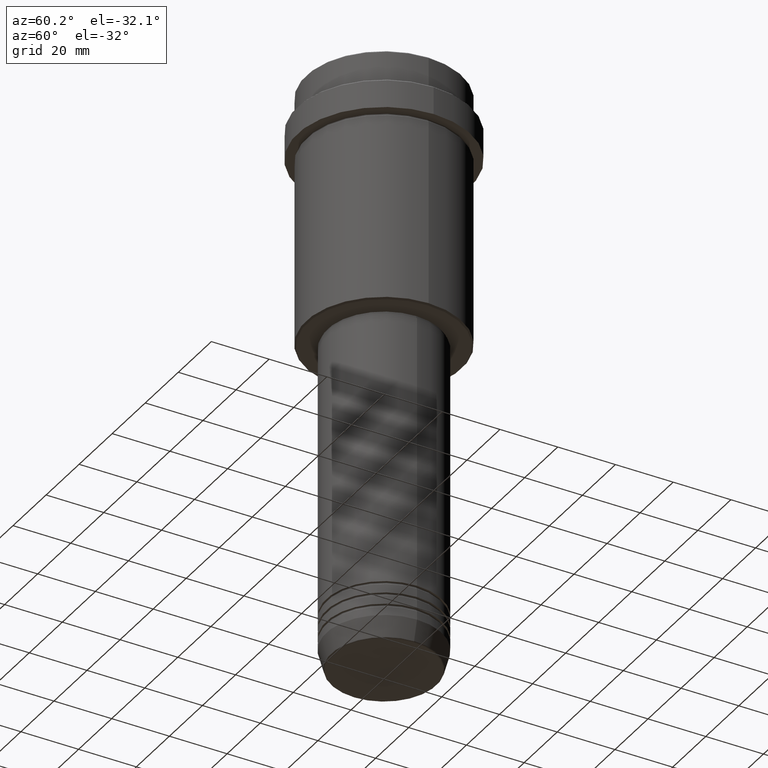
[diagram: clean part render]
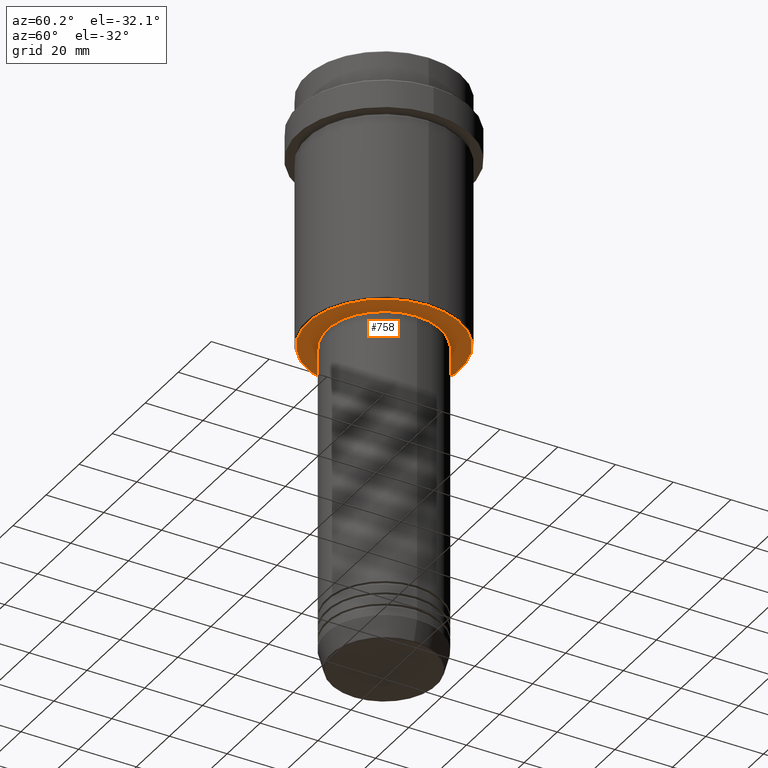
[diagram: same view with one face highlighted and labeled with its STEP entity id]
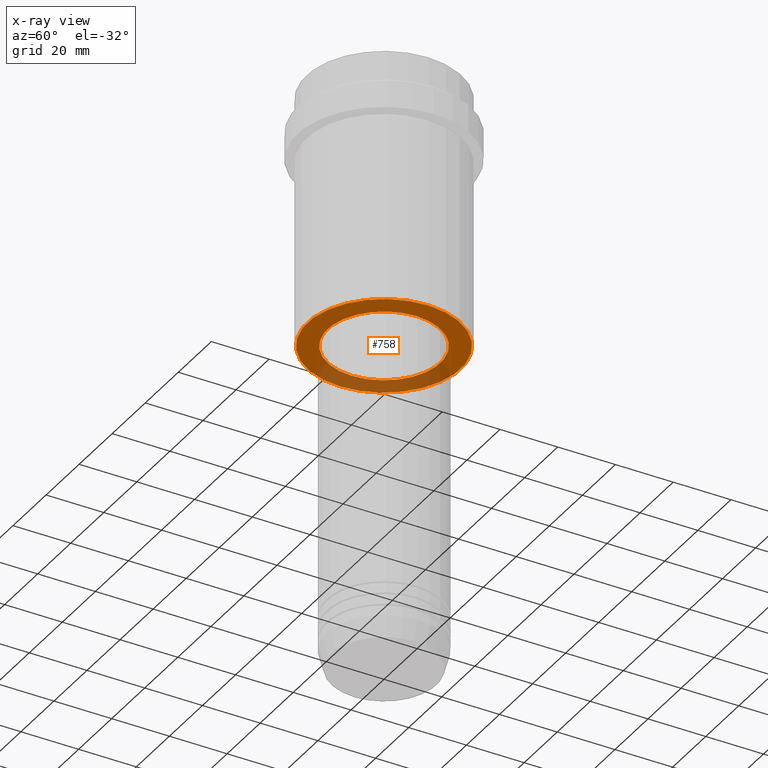
[diagram: x-ray of the same camera — body ghosted, the highlighted face saturated]
A machine part, auxiliary view. The second image highlights one B-rep face of the part: STEP entity #758.
The next image is the same camera in x-ray: the body ghosted, the highlighted face saturated — about 31% of this face is hidden behind the body in this view.
In plain terms, the highlighted planar face has unit normal (0, 0, -1).
Its self-contained STEP definition (entity closure, byte-faithful):
#80 = CARTESIAN_POINT ( 'NONE',  ( 0.000000000000000000, 27.00000000000000000, -88.00000000000001421 ) ) ;
#129 = CIRCLE ( 'NONE', #592, 19.50000000000000000 ) ;
#296 = CARTESIAN_POINT ( 'NONE',  ( -19.50000000000000000, 2.388061258337338939E-15, -88.00000000000001421 ) ) ;
#307 = AXIS2_PLACEMENT_3D ( 'NONE', #569, #1405, #974 ) ;
#333 = AXIS2_PLACEMENT_3D ( 'NONE', #839, #1169, #631 ) ;
#403 = EDGE_LOOP ( 'NONE', ( #444, #918 ) ) ;
#442 = AXIS2_PLACEMENT_3D ( 'NONE', #80, #732, #626 ) ;
#444 = ORIENTED_EDGE ( 'NONE', *, *, #1100, .T. ) ;
#467 = VERTEX_POINT ( 'NONE', #1070 ) ;
#487 = EDGE_CURVE ( 'NONE', #1321, #467, #1281, .T. ) ;
#569 = CARTESIAN_POINT ( 'NONE',  ( 0.000000000000000000, 0.000000000000000000, -88.00000000000001421 ) ) ;
#592 = AXIS2_PLACEMENT_3D ( 'NONE', #1159, #943, #1164 ) ;
#601 = VERTEX_POINT ( 'NONE', #761 ) ;
#626 = DIRECTION ( 'NONE',  ( -1.000000000000000000, 0.000000000000000000, -0.000000000000000000 ) ) ;
#629 = ORIENTED_EDGE ( 'NONE', *, *, #1299, .T. ) ;
#631 = DIRECTION ( 'NONE',  ( -1.000000000000000000, 0.000000000000000000, 0.000000000000000000 ) ) ;
#681 = CIRCLE ( 'NONE', #333, 26.49999999999993960 ) ;
#732 = DIRECTION ( 'NONE',  ( 0.000000000000000000, 0.000000000000000000, -1.000000000000000000 ) ) ;
#758 = ADVANCED_FACE ( 'NONE', ( #853, #1069 ), #945, .T. ) ;
#761 = CARTESIAN_POINT ( 'NONE',  ( 26.49999999999993960, 0.000000000000000000, -88.00000000000001421 ) ) ;
#789 = ORIENTED_EDGE ( 'NONE', *, *, #487, .T. ) ;
#839 = CARTESIAN_POINT ( 'NONE',  ( 0.000000000000000000, 0.000000000000000000, -88.00000000000001421 ) ) ;
#850 = DIRECTION ( 'NONE',  ( 1.000000000000000000, 0.000000000000000000, 0.000000000000000000 ) ) ;
#853 = FACE_OUTER_BOUND ( 'NONE', #403, .T. ) ;
#871 = DIRECTION ( 'NONE',  ( -0.000000000000000000, -0.000000000000000000, 1.000000000000000000 ) ) ;
#918 = ORIENTED_EDGE ( 'NONE', *, *, #1348, .T. ) ;
#943 = DIRECTION ( 'NONE',  ( -0.000000000000000000, -0.000000000000000000, 1.000000000000000000 ) ) ;
#945 = PLANE ( 'NONE',  #442 ) ;
#974 = DIRECTION ( 'NONE',  ( -1.000000000000000000, 0.000000000000000000, 0.000000000000000000 ) ) ;
#977 = CARTESIAN_POINT ( 'NONE',  ( 0.000000000000000000, 0.000000000000000000, -88.00000000000001421 ) ) ;
#1033 = CARTESIAN_POINT ( 'NONE',  ( -26.49999999999993960, 3.275930187719166002E-15, -88.00000000000001421 ) ) ;
#1055 = EDGE_LOOP ( 'NONE', ( #629, #789 ) ) ;
#1069 = FACE_BOUND ( 'NONE', #1055, .T. ) ;
#1070 = CARTESIAN_POINT ( 'NONE',  ( 19.50000000000000000, 0.000000000000000000, -88.00000000000001421 ) ) ;
#1100 = EDGE_CURVE ( 'NONE', #601, #1180, #1135, .T. ) ;
#1135 = CIRCLE ( 'NONE', #307, 26.49999999999993960 ) ;
#1159 = CARTESIAN_POINT ( 'NONE',  ( 0.000000000000000000, 0.000000000000000000, -88.00000000000001421 ) ) ;
#1164 = DIRECTION ( 'NONE',  ( 1.000000000000000000, 0.000000000000000000, 0.000000000000000000 ) ) ;
#1169 = DIRECTION ( 'NONE',  ( 0.000000000000000000, 0.000000000000000000, -1.000000000000000000 ) ) ;
#1180 = VERTEX_POINT ( 'NONE', #1033 ) ;
#1263 = AXIS2_PLACEMENT_3D ( 'NONE', #977, #871, #850 ) ;
#1281 = CIRCLE ( 'NONE', #1263, 19.50000000000000000 ) ;
#1299 = EDGE_CURVE ( 'NONE', #467, #1321, #129, .T. ) ;
#1321 = VERTEX_POINT ( 'NONE', #296 ) ;
#1348 = EDGE_CURVE ( 'NONE', #1180, #601, #681, .T. ) ;
#1405 = DIRECTION ( 'NONE',  ( 0.000000000000000000, 0.000000000000000000, -1.000000000000000000 ) ) ;